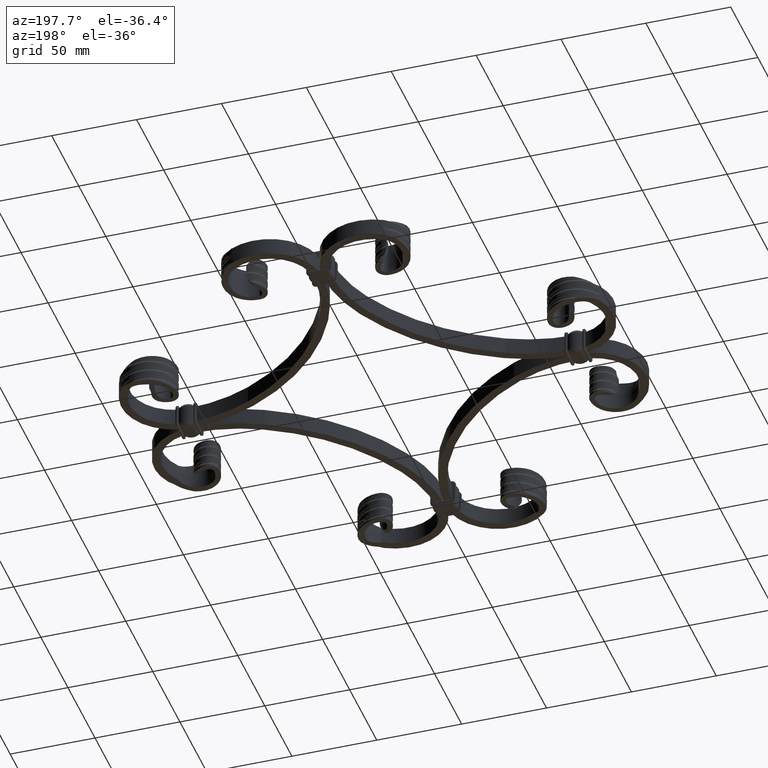
[diagram: clean part render]
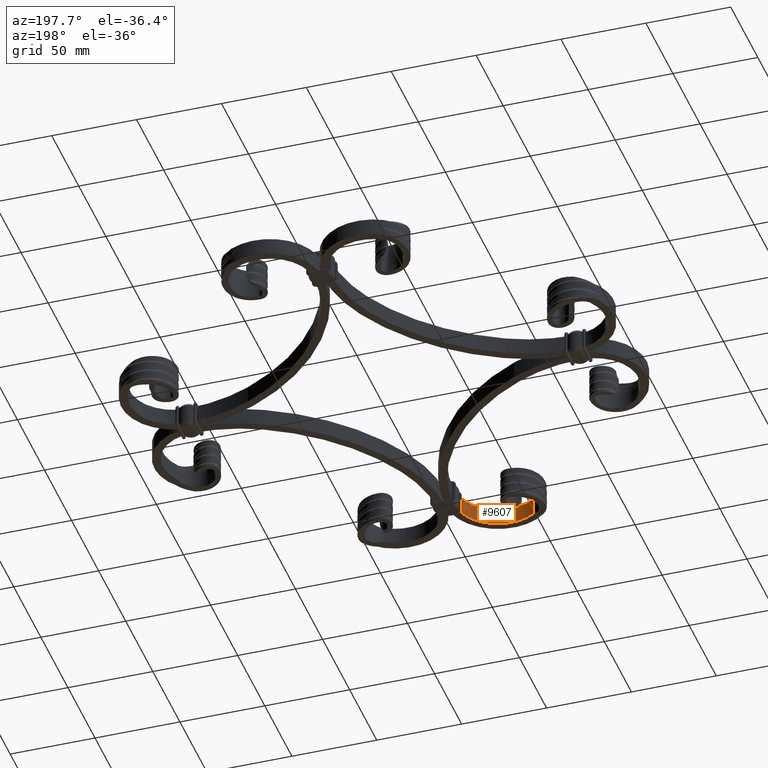
[diagram: same view with one face highlighted and labeled with its STEP entity id]
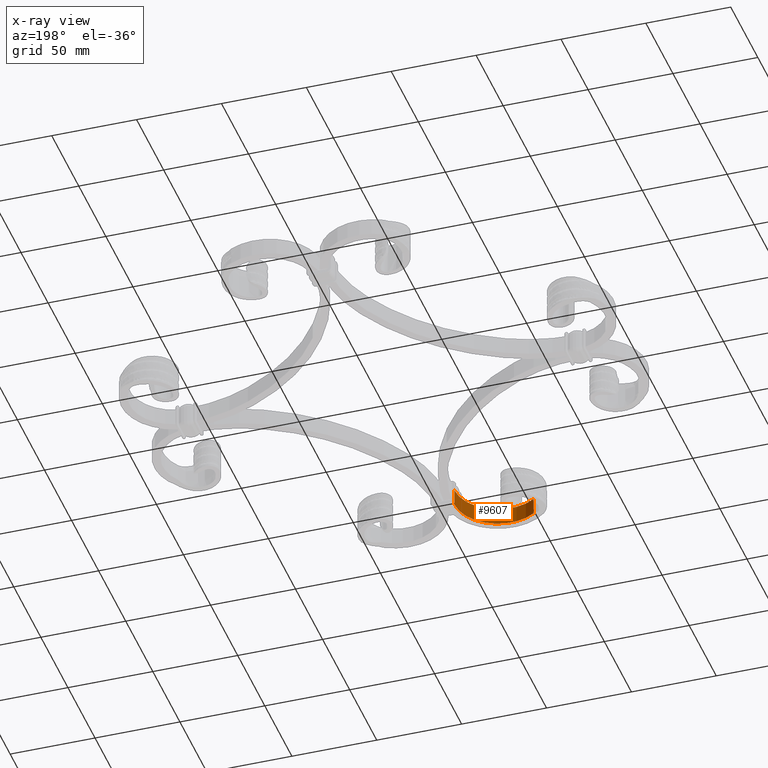
[diagram: x-ray of the same camera — body ghosted, the highlighted face saturated]
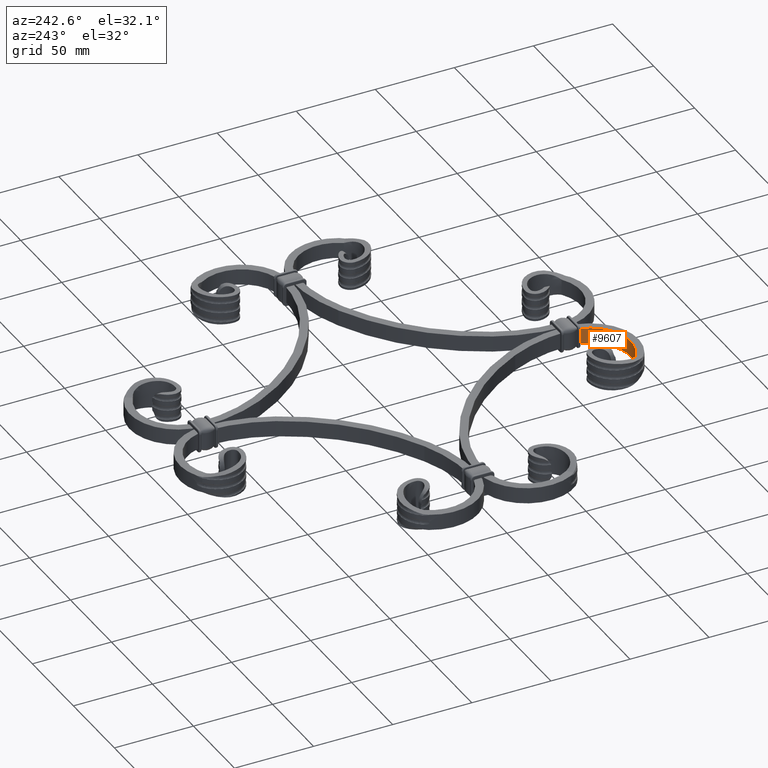
[diagram: same view with one face highlighted and labeled with its STEP entity id]
A machine part, auxiliary view. The second image highlights one B-rep face of the part: STEP entity #9607.
The next image is the same camera in x-ray: the body ghosted, the highlighted face saturated — about 0% of this face is hidden behind the body in this view.
A second angle (auxiliary view) of the same face is appended — the face is thin or edge-on in the first view.
In plain terms, the highlighted cylindrical surface (partial cylindrical patch) has radius 25.4695 mm, axis along (0, 0, 1).
Its self-contained STEP definition (entity closure, byte-faithful):
#212 = CARTESIAN_POINT ( 'NONE',  ( -5.000000000000018652, -114.5304832720491817, -5.000000000000000000 ) ) ;
#1515 = CARTESIAN_POINT ( 'NONE',  ( -30.46951672795093558, -114.5304832720490822, -5.000000000000000000 ) ) ;
#3678 = EDGE_CURVE ( 'NONE', #41551, #6294, #40448, .T. ) ;
#4577 = CARTESIAN_POINT ( 'NONE',  ( -44.87102576925720854, -135.5374540124615237, -5.000000000000000000 ) ) ;
#4713 = DIRECTION ( 'NONE',  ( 0.000000000000000000, 0.000000000000000000, 1.000000000000000000 ) ) ;
#5336 = VECTOR ( 'NONE', #33380, 1000.000000000000000 ) ;
#6294 = VERTEX_POINT ( 'NONE', #6693 ) ;
#6500 = ORIENTED_EDGE ( 'NONE', *, *, #38185, .F. ) ;
#6693 = CARTESIAN_POINT ( 'NONE',  ( -5.000000000000018652, -114.5304832720491817, 5.000000000000000000 ) ) ;
#6853 = VERTEX_POINT ( 'NONE', #32748 ) ;
#8174 = CARTESIAN_POINT ( 'NONE',  ( -30.46951672795093558, -114.5304832720490822, 0.000000000000000000 ) ) ;
#9607 = ADVANCED_FACE ( 'NONE', ( #17901 ), #34795, .F. ) ;
#10111 = CARTESIAN_POINT ( 'NONE',  ( -5.000000000000011546, -114.5304832720491675, -5.000000000000000000 ) ) ;
#12518 = VECTOR ( 'NONE', #42217, 1000.000000000000000 ) ;
#14596 = AXIS2_PLACEMENT_3D ( 'NONE', #27365, #16513, #38433 ) ;
#16513 = DIRECTION ( 'NONE',  ( 0.000000000000000000, 0.000000000000000000, 1.000000000000000000 ) ) ;
#17901 = FACE_OUTER_BOUND ( 'NONE', #41025, .T. ) ;
#19295 = DIRECTION ( 'NONE',  ( 1.000000000000000000, 0.000000000000000000, 0.000000000000000000 ) ) ;
#19503 = EDGE_CURVE ( 'NONE', #6294, #39046, #36193, .T. ) ;
#24728 = AXIS2_PLACEMENT_3D ( 'NONE', #1515, #45268, #26804 ) ;
#26804 = DIRECTION ( 'NONE',  ( -0.5654410013010449099, -0.8247887451024484839, 0.000000000000000000 ) ) ;
#27365 = CARTESIAN_POINT ( 'NONE',  ( -30.46951672795093558, -114.5304832720490822, 5.000000000000000000 ) ) ;
#28084 = EDGE_CURVE ( 'NONE', #41551, #6853, #41930, .T. ) ;
#29317 = CARTESIAN_POINT ( 'NONE',  ( -44.87102576925720854, -135.5374540124615237, 5.000000000000000000 ) ) ;
#31568 = ORIENTED_EDGE ( 'NONE', *, *, #19503, .T. ) ;
#32748 = CARTESIAN_POINT ( 'NONE',  ( -44.87102576925720854, -135.5374540124615237, -5.000000000000000000 ) ) ;
#33380 = DIRECTION ( 'NONE',  ( 0.000000000000000000, 0.000000000000000000, -1.000000000000000000 ) ) ;
#34795 = CYLINDRICAL_SURFACE ( 'NONE', #42933, 25.46951672795091071 ) ;
#36193 = LINE ( 'NONE', #10111, #12518 ) ;
#38185 = EDGE_CURVE ( 'NONE', #6853, #39046, #44944, .T. ) ;
#38433 = DIRECTION ( 'NONE',  ( -0.5654410013010449099, -0.8247887451024484839, 0.000000000000000000 ) ) ;
#39046 = VERTEX_POINT ( 'NONE', #212 ) ;
#40448 = CIRCLE ( 'NONE', #14596, 25.46951672795091071 ) ;
#41025 = EDGE_LOOP ( 'NONE', ( #6500, #45572, #46665, #31568 ) ) ;
#41551 = VERTEX_POINT ( 'NONE', #29317 ) ;
#41930 = LINE ( 'NONE', #4577, #5336 ) ;
#42217 = DIRECTION ( 'NONE',  ( -0.000000000000000000, 0.000000000000000000, -1.000000000000000000 ) ) ;
#42933 = AXIS2_PLACEMENT_3D ( 'NONE', #8174, #4713, #19295 ) ;
#44944 = CIRCLE ( 'NONE', #24728, 25.46951672795091071 ) ;
#45268 = DIRECTION ( 'NONE',  ( 0.000000000000000000, 0.000000000000000000, 1.000000000000000000 ) ) ;
#45572 = ORIENTED_EDGE ( 'NONE', *, *, #28084, .F. ) ;
#46665 = ORIENTED_EDGE ( 'NONE', *, *, #3678, .T. ) ;